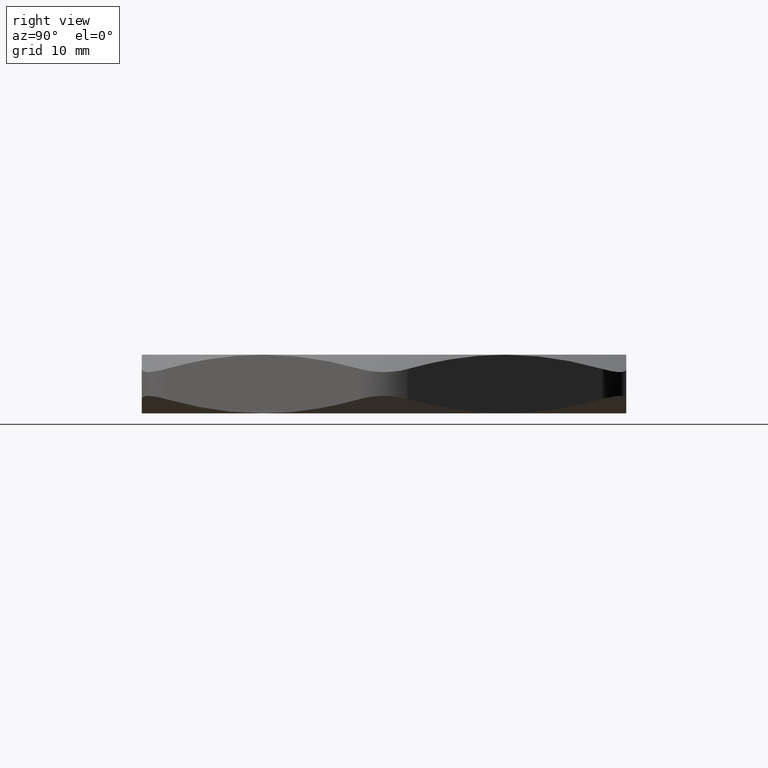
[diagram: clean part render]
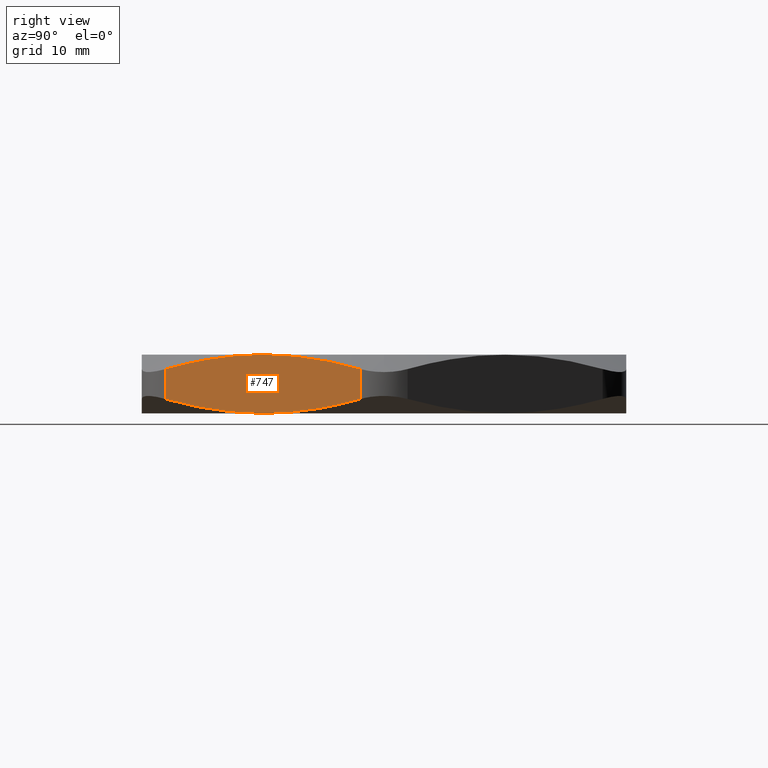
[diagram: same view with one face highlighted and labeled with its STEP entity id]
A machine part, right view. The second image highlights one B-rep face of the part: STEP entity #747.
In plain terms, the highlighted planar face has unit normal (-0.866, 0.5, 0).
Its self-contained STEP definition (entity closure, byte-faithful):
#747 = ADVANCED_FACE ( 'NONE', ( #2316 ), #2315, .F. ) ;
#748 = EDGE_LOOP ( 'NONE', ( #749, #847, #851, #853, #858, #861 ) ) ;
#749 = ORIENTED_EDGE ( 'NONE', *, *, #750, .F. ) ;
#750 = EDGE_CURVE ( 'NONE', #751, #846, #2365, .T. ) ;
#751 = VERTEX_POINT ( 'NONE', #2364 ) ;
#846 = VERTEX_POINT ( 'NONE', #2577 ) ;
#847 = ORIENTED_EDGE ( 'NONE', *, *, #848, .T. ) ;
#848 = EDGE_CURVE ( 'NONE', #751, #849, #2576, .T. ) ;
#849 = VERTEX_POINT ( 'NONE', #2572 ) ;
#850 = VERTEX_POINT ( 'NONE', #2571 ) ;
#851 = ORIENTED_EDGE ( 'NONE', *, *, #852, .F. ) ;
#852 = EDGE_CURVE ( 'NONE', #850, #849, #2632, .T. ) ;
#853 = ORIENTED_EDGE ( 'NONE', *, *, #856, .F. ) ;
#856 = EDGE_CURVE ( 'NONE', #857, #850, #2616, .T. ) ;
#857 = VERTEX_POINT ( 'NONE', #2615 ) ;
#858 = ORIENTED_EDGE ( 'NONE', *, *, #859, .T. ) ;
#859 = EDGE_CURVE ( 'NONE', #857, #860, #2608, .T. ) ;
#860 = VERTEX_POINT ( 'NONE', #2604 ) ;
#861 = ORIENTED_EDGE ( 'NONE', *, *, #862, .F. ) ;
#862 = EDGE_CURVE ( 'NONE', #846, #860, #2658, .T. ) ;
#2311 = DIRECTION ( 'NONE',  ( -0.4999999999999998900, -0.8660254037844386000, 0.0000000000000000000 ) ) ;
#2312 = DIRECTION ( 'NONE',  ( -0.8660254037844387100, 0.4999999999999999400, 0.0000000000000000000 ) ) ;
#2313 = CARTESIAN_POINT ( 'NONE',  ( 0.7390083445627209100, -1.279999999999999800, 0.3100000000000000000 ) ) ;
#2314 = AXIS2_PLACEMENT_3D ( 'NONE', #2313, #2312, #2311 ) ;
#2315 = PLANE ( 'NONE',  #2314 ) ;
#2316 = FACE_OUTER_BOUND ( 'NONE', #748, .T. ) ;
#2358 = CARTESIAN_POINT ( 'NONE',  ( 1.108512516844081500, -0.6400000000000000100, 0.0000000000000000000 ) ) ;
#2359 = CARTESIAN_POINT ( 'NONE',  ( 1.158976470902578000, -0.5525938676198611800, -1.598024363481341100E-016 ) ) ;
#2360 = CARTESIAN_POINT ( 'NONE',  ( 1.208939987255790400, -0.4660545187712995500, 0.006967892365456297900 ) ) ;
#2361 = CARTESIAN_POINT ( 'NONE',  ( 1.307993920598690100, -0.2944880735318566900, 0.03306035978662413800 ) ) ;
#2362 = CARTESIAN_POINT ( 'NONE',  ( 1.357087723787274900, -0.2094551120724405800, 0.05213778677735767700 ) ) ;
#2363 = CARTESIAN_POINT ( 'NONE',  ( 1.405847905476738500, -0.1249999999999996300, 0.07586042469470380400 ) ) ;
#2364 = CARTESIAN_POINT ( 'NONE',  ( 1.405847905476738500, -0.1249999999999996300, 0.07586042469470380400 ) ) ;
#2365 = B_SPLINE_CURVE_WITH_KNOTS ( 'NONE', 3,
 ( #2363, #2362, #2361, #2360, #2359, #2358 ),
 .UNSPECIFIED., .F., .F.,
 ( 4, 2, 4 ),
 ( 0.003768077590883896800, 0.01138065098538848500, 0.01899322437989306800 ),
 .UNSPECIFIED. ) ;
#2571 = CARTESIAN_POINT ( 'NONE',  ( 1.108512516844081300, -0.6399999999999996800, 0.3100000000000000000 ) ) ;
#2572 = CARTESIAN_POINT ( 'NONE',  ( 1.405847905476738500, -0.1249999999999995800, 0.2341395753052960000 ) ) ;
#2573 = DIRECTION ( 'NONE',  ( 0.0000000000000000000, 0.0000000000000000000, 1.000000000000000000 ) ) ;
#2574 = VECTOR ( 'NONE', #2573, 39.37007874015748100 ) ;
#2575 = CARTESIAN_POINT ( 'NONE',  ( 1.405847905476738500, -0.1249999999999996300, 0.3100000000000000000 ) ) ;
#2576 = LINE ( 'NONE', #2575, #2574 ) ;
#2577 = CARTESIAN_POINT ( 'NONE',  ( 1.108512516844081500, -0.6400000000000000100, 0.0000000000000000000 ) ) ;
#2604 = CARTESIAN_POINT ( 'NONE',  ( 0.8111771282114361700, -1.154999999999978900, 0.07586042469469790600 ) ) ;
#2605 = DIRECTION ( 'NONE',  ( 0.0000000000000000000, 0.0000000000000000000, -1.000000000000000000 ) ) ;
#2606 = VECTOR ( 'NONE', #2605, 39.37007874015748100 ) ;
#2607 = CARTESIAN_POINT ( 'NONE',  ( 0.8111771282114241800, -1.154999999999999800, 0.3100000000000000000 ) ) ;
#2608 = LINE ( 'NONE', #2607, #2606 ) ;
#2609 = CARTESIAN_POINT ( 'NONE',  ( 1.108512516844081300, -0.6399999999999996800, 0.3100000000000000000 ) ) ;
#2610 = CARTESIAN_POINT ( 'NONE',  ( 1.058048562785584900, -0.7274061323801382900, 0.3100000000000001600 ) ) ;
#2611 = CARTESIAN_POINT ( 'NONE',  ( 1.008085046432372300, -0.8139454812286999200, 0.3030321076345437500 ) ) ;
#2612 = CARTESIAN_POINT ( 'NONE',  ( 0.9090311130894730400, -0.9855119264681427800, 0.2769396402133760300 ) ) ;
#2613 = CARTESIAN_POINT ( 'NONE',  ( 0.8599373099008876800, -1.070544887927558800, 0.2578622132226423600 ) ) ;
#2614 = CARTESIAN_POINT ( 'NONE',  ( 0.8111771282114241800, -1.154999999999999800, 0.2341395753052962200 ) ) ;
#2615 = CARTESIAN_POINT ( 'NONE',  ( 0.8111771282114241800, -1.154999999999999800, 0.2341395753052962200 ) ) ;
#2616 = B_SPLINE_CURVE_WITH_KNOTS ( 'NONE', 3,
 ( #2614, #2613, #2612, #2611, #2610, #2609 ),
 .UNSPECIFIED., .F., .F.,
 ( 4, 2, 4 ),
 ( 0.003768077590883905500, 0.01138065098538848700, 0.01899322437989306800 ),
 .UNSPECIFIED. ) ;
#2619 = CARTESIAN_POINT ( 'NONE',  ( 1.405847905476738500, -0.1249999999999995800, 0.2341395753052960000 ) ) ;
#2620 = CARTESIAN_POINT ( 'NONE',  ( 1.357189406177627100, -0.2092789930061156000, 0.2578127430515864100 ) ) ;
#2621 = CARTESIAN_POINT ( 'NONE',  ( 1.308149978651578900, -0.2942177730553229800, 0.2768865033834005400 ) ) ;
#2622 = CARTESIAN_POINT ( 'NONE',  ( 1.233843861240845100, -0.4229197437238924100, 0.2964779973084573600 ) ) ;
#2623 = CARTESIAN_POINT ( 'NONE',  ( 1.208950708344483000, -0.4660359493009709800, 0.3015058949488618200 ) ) ;
#2624 = CARTESIAN_POINT ( 'NONE',  ( 1.171406501563931000, -0.5310644229747595300, 0.3065788379027887800 ) ) ;
#2625 = CARTESIAN_POINT ( 'NONE',  ( 1.158857736063798200, -0.5527995223932575800, 0.3078589346480019600 ) ) ;
#2626 = CARTESIAN_POINT ( 'NONE',  ( 1.133689931715795800, -0.5963914382389498000, 0.3095706329790761100 ) ) ;
#2627 = CARTESIAN_POINT ( 'NONE',  ( 1.121074933927116700, -0.6182412553463119100, 0.3100000000000001100 ) ) ;
#2628 = CARTESIAN_POINT ( 'NONE',  ( 1.108512516844081300, -0.6399999999999996800, 0.3100000000000000000 ) ) ;
#2632 = B_SPLINE_CURVE_WITH_KNOTS ( 'NONE', 3,
 ( #2628, #2627, #2626, #2625, #2624, #2623, #2622, #2621, #2620, #2619 ),
 .UNSPECIFIED., .F., .F.,
 ( 4, 2, 2, 2, 4 ),
 ( 0.01899322437989306800, 0.02088828638684811800, 0.02278334839380316600, 0.02657347240771326700, 0.03415372043553347600 ),
 .UNSPECIFIED. ) ;
#2646 = CARTESIAN_POINT ( 'NONE',  ( 0.8111771282114361700, -1.154999999999978900, 0.07586042469469790600 ) ) ;
#2647 = CARTESIAN_POINT ( 'NONE',  ( 0.8598356275105459900, -1.070721006993866200, 0.05218725694840926200 ) ) ;
#2648 = CARTESIAN_POINT ( 'NONE',  ( 0.9088750550365924900, -0.9857822269446622200, 0.03311349661659690500 ) ) ;
#2649 = CARTESIAN_POINT ( 'NONE',  ( 0.9831811724473230600, -0.8570802562760980700, 0.01352200269154153900 ) ) ;
#2650 = CARTESIAN_POINT ( 'NONE',  ( 1.008074325343683500, -0.8139640506990213400, 0.008494105051137334000 ) ) ;
#2651 = CARTESIAN_POINT ( 'NONE',  ( 1.045618532124234400, -0.7489355770252355000, 0.003421162097210885800 ) ) ;
#2652 = CARTESIAN_POINT ( 'NONE',  ( 1.058167297624366800, -0.7272004776067384500, 0.002141065351997664200 ) ) ;
#2653 = CARTESIAN_POINT ( 'NONE',  ( 1.083335101972368000, -0.6836085617610477800, 0.0004293670209237435800 ) ) ;
#2654 = CARTESIAN_POINT ( 'NONE',  ( 1.095950099761046700, -0.6617587446536870000, -1.570456886982781100E-016 ) ) ;
#2655 = CARTESIAN_POINT ( 'NONE',  ( 1.108512516844081500, -0.6400000000000000100, 0.0000000000000000000 ) ) ;
#2658 = B_SPLINE_CURVE_WITH_KNOTS ( 'NONE', 3,
 ( #2655, #2654, #2653, #2652, #2651, #2650, #2649, #2648, #2647, #2646 ),
 .UNSPECIFIED., .F., .F.,
 ( 4, 2, 2, 2, 4 ),
 ( 0.01899322437989306800, 0.02088828638684804200, 0.02278334839380302000, 0.02657347240771296100, 0.03415372043553284400 ),
 .UNSPECIFIED. ) ;